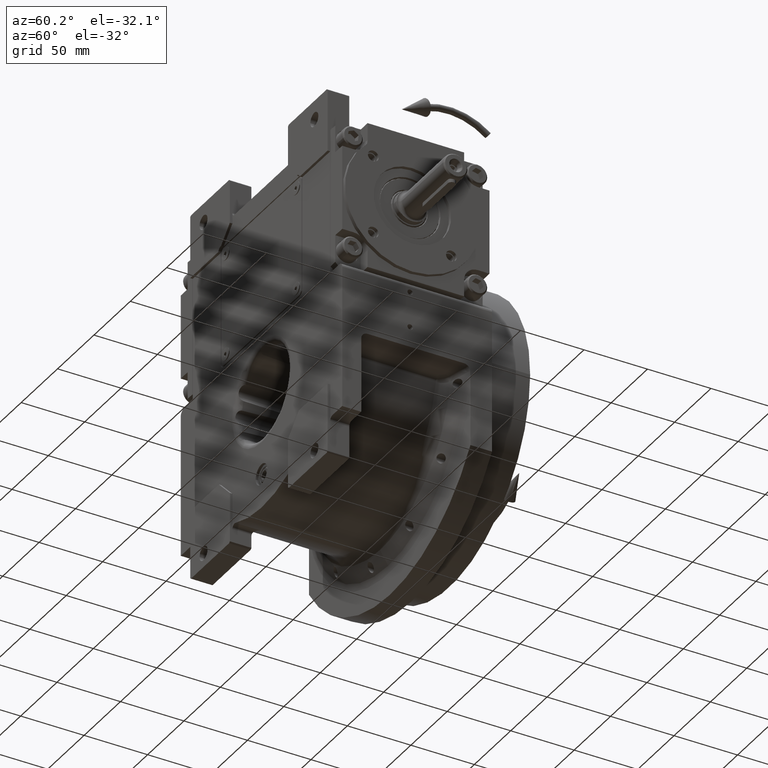
[diagram: clean part render]
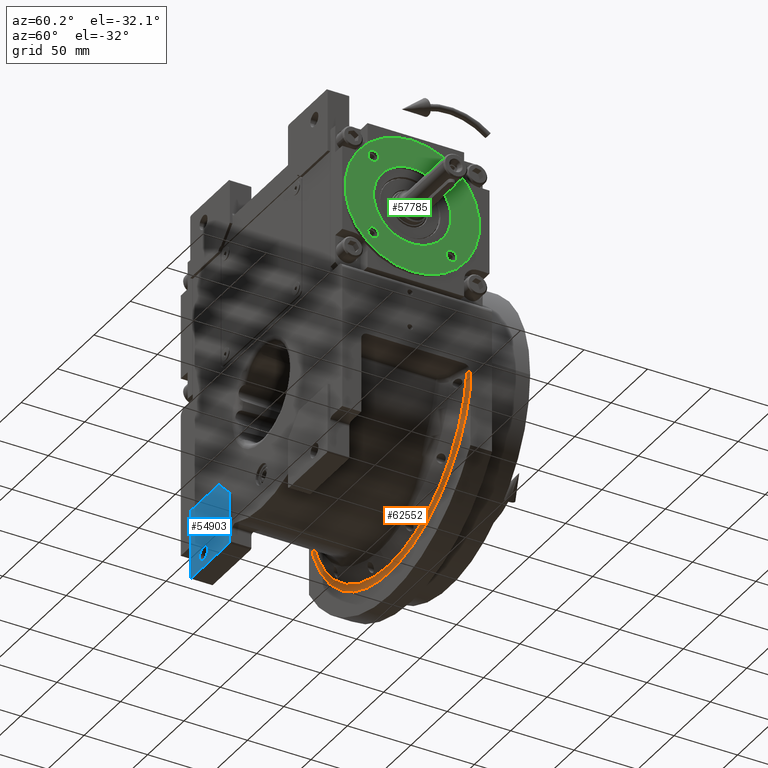
[diagram: same view with three faces highlighted in distinct colors, each labeled with its STEP entity id]
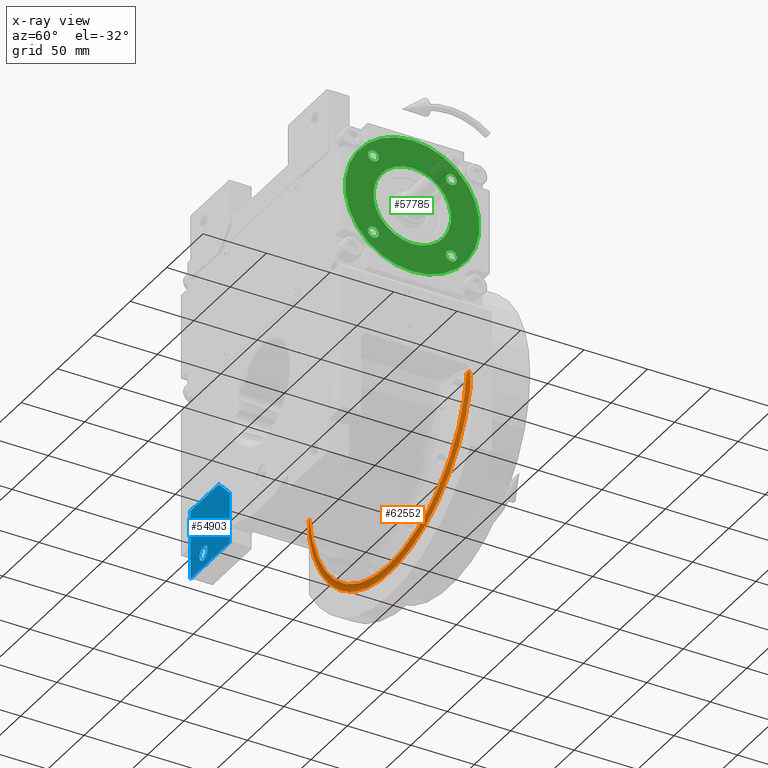
[diagram: x-ray of the same camera — body ghosted, the three highlighted faces saturated]
A machine part, auxiliary view with three faces highlighted in distinct colors.
The next image is the same camera in x-ray (body ghosted, the three faces saturated) — at least one of them is partly hidden behind the body in this view.
Their STEP definitions:

[orange] entity #62552 — the highlighted toroidal blend (fillet) surface has major radius 113.879 mm and minor (blend) radius 10 mm.
#1442 = ORIENTED_EDGE ( 'NONE', *, *, #37492, .F. ) ;
#2261 = DIRECTION ( 'NONE',  ( 0.000000000000000000, 1.000000000000000000, 0.000000000000000000 ) ) ;
#2542 = CARTESIAN_POINT ( 'NONE',  ( 108.2182055107325880, 46.16026080517839603, -11.98086067912928065 ) ) ;
#2767 = EDGE_CURVE ( 'NONE', #68856, #49885, #37595, .T. ) ;
#4056 = CARTESIAN_POINT ( 'NONE',  ( 108.2182055107325880, 46.16026080517839603, -11.98086067912928065 ) ) ;
#5050 = VERTEX_POINT ( 'NONE', #23786 ) ;
#5181 = CARTESIAN_POINT ( 'NONE',  ( 110.9999999999999716, 47.37947912676571605, -17.25058397870262894 ) ) ;
#5204 = EDGE_CURVE ( 'NONE', #59089, #41623, #39134, .T. ) ;
#6763 = CARTESIAN_POINT ( 'NONE',  ( -111.0000000000000142, 47.39775283363938030, -18.01025571059393826 ) ) ;
#9740 = CARTESIAN_POINT ( 'NONE',  ( 110.9999999999999574, 47.37721023959501565, -17.15660303781627150 ) ) ;
#9905 = CARTESIAN_POINT ( 'NONE',  ( -111.0000000000000000, 47.50000000000000000, -25.44626115736729588 ) ) ;
#10220 = CARTESIAN_POINT ( 'NONE',  ( -108.5720257659131534, 46.36153724422366906, -11.95314572303506395 ) ) ;
#10331 = CARTESIAN_POINT ( 'NONE',  ( 110.9999998869266022, 47.24161831933449918, -11.75654022255562126 ) ) ;
#10779 = B_SPLINE_CURVE_WITH_KNOTS ( 'NONE', 3,
 ( #43684, #44357, #33449, #6763, #27134, #32056, #38054, #16239, #53861, #64723, #16583, #59475, #11337 ),
 .UNSPECIFIED., .F., .F.,
 ( 4, 1, 1, 2, 2, 1, 1, 1, 4 ),
 ( 0.000000000000000000, 0.4999999999999906741, 0.5624999999999891198, 0.5703124999999893419, 0.5781249999999896749, 0.5937499999999901190, 0.6249999999999905631, 0.7499999999999935607, 1.000000000000000000 ),
 .UNSPECIFIED. ) ;
#11337 = CARTESIAN_POINT ( 'NONE',  ( -110.9999998426041969, 47.24161804384319652, -11.75654023702319861 ) ) ;
#12448 = CARTESIAN_POINT ( 'NONE',  ( -6.107335892911600708E-14, 46.16024936020976099, -108.8793717567185979 ) ) ;
#12451 = DIRECTION ( 'NONE',  ( -0.9987228073795436645, 0.000000000000000000, -0.05052478619373559215 ) ) ;
#12508 = ORIENTED_EDGE ( 'NONE', *, *, #25675, .T. ) ;
#12549 = CARTESIAN_POINT ( 'NONE',  ( 108.9783490142804538, 46.56487083118202719, -11.92075401756932429 ) ) ;
#13605 = EDGE_CURVE ( 'NONE', #59089, #5050, #44052, .T. ) ;
#15712 = CARTESIAN_POINT ( 'NONE',  ( 110.9999998869266022, 47.24161831933449918, -11.75654022255562126 ) ) ;
#16239 = CARTESIAN_POINT ( 'NONE',  ( -111.0000000000000568, 47.38398366112607363, -17.43201616111707608 ) ) ;
#16583 = CARTESIAN_POINT ( 'NONE',  ( -111.0000000000000284, 47.30739276393136095, -14.28307552350015541 ) ) ;
#20991 = AXIS2_PLACEMENT_3D ( 'NONE', #37780, #53596, #27231 ) ;
#21336 = CARTESIAN_POINT ( 'NONE',  ( 110.9999999999999289, 47.46019542777067812, -20.85051949887152745 ) ) ;
#22749 = CARTESIAN_POINT ( 'NONE',  ( 110.4235987460407671, 47.10989188117843440, -11.80426955000224964 ) ) ;
#23786 = CARTESIAN_POINT ( 'NONE',  ( 111.0000000000000000, 47.50000000000000000, -25.44626115736659955 ) ) ;
#24753 = TOROIDAL_SURFACE ( 'NONE', #43872, 113.8793756871230016, 10.00000000000000000 ) ;
#25434 = B_SPLINE_CURVE_WITH_KNOTS ( 'NONE', 3,
 ( #57663, #10220, #63275, #25698, #26037, #35884 ),
 .UNSPECIFIED., .F., .F.,
 ( 4, 2, 4 ),
 ( 0.000000000000000000, 0.5000000000000000000, 1.000000000000000000 ),
 .UNSPECIFIED. ) ;
#25675 = EDGE_CURVE ( 'NONE', #32113, #5050, #41168, .T. ) ;
#25698 = CARTESIAN_POINT ( 'NONE',  ( -109.9037689433001930, 46.93895356715016476, -11.84632748395139146 ) ) ;
#26037 = CARTESIAN_POINT ( 'NONE',  ( -110.4234585868003222, 47.10985980794839634, -11.80427979343789069 ) ) ;
#26183 = CARTESIAN_POINT ( 'NONE',  ( 58.33757220637139795, 46.16024934371661459, -108.8793713190323729 ) ) ;
#26460 = CARTESIAN_POINT ( 'NONE',  ( 108.5721546957471020, 46.36161021549431638, -11.95313475060374131 ) ) ;
#26593 = CARTESIAN_POINT ( 'NONE',  ( 110.9999999999999574, 47.38500262563848509, -17.48094355212767326 ) ) ;
#27134 = CARTESIAN_POINT ( 'NONE',  ( -111.0000000000000284, 47.38981798226070907, -17.67600262140464196 ) ) ;
#27231 = DIRECTION ( 'NONE',  ( -0.9747155648707268583, 0.000000000000000000, -0.2234492506112734644 ) ) ;
#28351 = CARTESIAN_POINT ( 'NONE',  ( 110.9999998869266022, 47.24161831933449918, -11.75654022255562126 ) ) ;
#28727 = ORIENTED_EDGE ( 'NONE', *, *, #13605, .F. ) ;
#31519 = CARTESIAN_POINT ( 'NONE',  ( 110.9999999999999858, 47.35262548411426309, -16.14045418600772308 ) ) ;
#31863 = CARTESIAN_POINT ( 'NONE',  ( 111.0000000000000000, 47.38034144301978046, -17.28637658354777784 ) ) ;
#32056 = CARTESIAN_POINT ( 'NONE',  ( -111.0000000000000142, 47.38804427955523835, -17.60168279826294579 ) ) ;
#32113 = VERTEX_POINT ( 'NONE', #9905 ) ;
#33449 = CARTESIAN_POINT ( 'NONE',  ( -110.9999999999999858, 47.45869610671962846, -20.70783326501533494 ) ) ;
#33556 = CARTESIAN_POINT ( 'NONE',  ( -110.9999998426041969, 47.24161804384319652, -11.75654023702319861 ) ) ;
#35884 = CARTESIAN_POINT ( 'NONE',  ( -110.9999998426041969, 47.24161804384319652, -11.75654023702319861 ) ) ;
#37492 = EDGE_CURVE ( 'NONE', #49885, #41623, #67743, .T. ) ;
#37497 = CARTESIAN_POINT ( 'NONE',  ( 111.0000000000000000, 47.50000000000000000, -25.44626115736659955 ) ) ;
#37595 =( BOUNDED_CURVE ( )  B_SPLINE_CURVE ( 3, ( #66202, #45137, #61267, #12448 ),
 .UNSPECIFIED., .F., .F. ) 
 B_SPLINE_CURVE_WITH_KNOTS ( ( 4, 4 ),
 ( 4.894359738531879778, 6.354897060524587360 ),
 .UNSPECIFIED. ) 
 CURVE ( )  GEOMETRIC_REPRESENTATION_ITEM ( )  RATIONAL_B_SPLINE_CURVE ( ( 1.000000000000000000, 0.8299968090623841555, 0.8299968090623841555, 1.000000000000000000 ) ) 
 REPRESENTATION_ITEM ( '' )  );
#37780 = CARTESIAN_POINT ( 'NONE',  ( -9.947598300641398816E-14, 47.50000000000000000, -5.684341886080798963E-14 ) ) ;
#38054 = CARTESIAN_POINT ( 'NONE',  ( -111.0000000000000142, 47.38697793714037942, -17.55712914402924696 ) ) ;
#39134 = B_SPLINE_CURVE_WITH_KNOTS ( 'NONE', 3,
 ( #28351, #22749, #49828, #12549, #26460, #51882 ),
 .UNSPECIFIED., .F., .F.,
 ( 4, 2, 4 ),
 ( 0.000000000000000000, 0.5000000000000000000, 1.000000000000000000 ),
 .UNSPECIFIED. ) ;
#40610 = ORIENTED_EDGE ( 'NONE', *, *, #2767, .F. ) ;
#41168 = CIRCLE ( 'NONE', #20991, 113.8793756871230158 ) ;
#41623 = VERTEX_POINT ( 'NONE', #2542 ) ;
#41721 = EDGE_CURVE ( 'NONE', #68856, #57443, #25434, .T. ) ;
#43684 = CARTESIAN_POINT ( 'NONE',  ( -111.0000000000000000, 47.50000000000000000, -25.44626115736729588 ) ) ;
#43872 = AXIS2_PLACEMENT_3D ( 'NONE', #50427, #2261, #12451 ) ;
#44052 = B_SPLINE_CURVE_WITH_KNOTS ( 'NONE', 3,
 ( #15712, #47379, #68780, #31519, #63846, #9740, #5181, #31863, #26593, #58918, #21336, #48078, #37497 ),
 .UNSPECIFIED., .F., .F.,
 ( 4, 1, 1, 1, 2, 2, 1, 1, 4 ),
 ( 0.000000000000000000, 0.2499999999999993339, 0.3749999999999991673, 0.3906249999999991673, 0.3984374999999988898, 0.4062499999999986122, 0.4374999999999987788, 0.4999999999999991118, 1.000000000000000000 ),
 .UNSPECIFIED. ) ;
#44357 = CARTESIAN_POINT ( 'NONE',  ( -110.9999999999999858, 47.49184152199143227, -23.26125549203704068 ) ) ;
#44453 = FACE_OUTER_BOUND ( 'NONE', #60206, .T. ) ;
#45137 = CARTESIAN_POINT ( 'NONE',  ( -101.7990064294248214, 46.16025384316066038, -69.96404336023731219 ) ) ;
#47379 = CARTESIAN_POINT ( 'NONE',  ( 110.9999999999999574, 47.26250817921272329, -12.53135113091263264 ) ) ;
#48078 = CARTESIAN_POINT ( 'NONE',  ( 110.9999999999999574, 47.49300976463167956, -23.37757664004382363 ) ) ;
#49828 = CARTESIAN_POINT ( 'NONE',  ( 109.9039732449431170, 46.93902478097685815, -11.84631214861205706 ) ) ;
#49885 = VERTEX_POINT ( 'NONE', #64367 ) ;
#50427 = CARTESIAN_POINT ( 'NONE',  ( -9.237055564881299892E-14, 37.50000000000000000, -8.171241461241149613E-14 ) ) ;
#51048 = CARTESIAN_POINT ( 'NONE',  ( -108.2181486248951927, 46.16020982646139714, -11.98056577044130044 ) ) ;
#51882 = CARTESIAN_POINT ( 'NONE',  ( 108.2182055107325880, 46.16026080517839603, -11.98086067912928065 ) ) ;
#51886 = ORIENTED_EDGE ( 'NONE', *, *, #5204, .T. ) ;
#51903 = ORIENTED_EDGE ( 'NONE', *, *, #41721, .T. ) ;
#52901 = CARTESIAN_POINT ( 'NONE',  ( 101.7988371762501458, 46.16025378558333614, -69.96418493751507128 ) ) ;
#53596 = DIRECTION ( 'NONE',  ( 0.000000000000000000, -1.000000000000000000, 0.000000000000000000 ) ) ;
#53861 = CARTESIAN_POINT ( 'NONE',  ( -111.0000000000000000, 47.37801887890174868, -17.18315811918595060 ) ) ;
#56981 = ORIENTED_EDGE ( 'NONE', *, *, #64392, .F. ) ;
#57443 = VERTEX_POINT ( 'NONE', #33556 ) ;
#57663 = CARTESIAN_POINT ( 'NONE',  ( -108.2181486248951927, 46.16020982646139714, -11.98056577044130044 ) ) ;
#58918 = CARTESIAN_POINT ( 'NONE',  ( 110.9999999999999147, 47.39592956473512686, -17.94582316151957713 ) ) ;
#59089 = VERTEX_POINT ( 'NONE', #10331 ) ;
#59475 = CARTESIAN_POINT ( 'NONE',  ( -111.0000000000000284, 47.26671036820440008, -12.69711666045169274 ) ) ;
#60206 = EDGE_LOOP ( 'NONE', ( #40610, #51903, #56981, #12508, #28727, #51886, #1442 ) ) ;
#61267 = CARTESIAN_POINT ( 'NONE',  ( -58.33770022237654018, 46.16024937670292871, -108.8793721944054340 ) ) ;
#62552 = ADVANCED_FACE ( 'NONE', ( #44453 ), #24753, .F. ) ;
#63275 = CARTESIAN_POINT ( 'NONE',  ( -108.9781506155099464, 46.56477920288156724, -11.92076974956339086 ) ) ;
#63846 = CARTESIAN_POINT ( 'NONE',  ( 110.9999999999999858, 47.37382107352491545, -17.01630155678829581 ) ) ;
#64367 = CARTESIAN_POINT ( 'NONE',  ( -6.107335892911600708E-14, 46.16024936020976099, -108.8793717567185979 ) ) ;
#64392 = EDGE_CURVE ( 'NONE', #32113, #57443, #10779, .T. ) ;
#64723 = CARTESIAN_POINT ( 'NONE',  ( -110.9999999999999716, 47.35640947859300098, -16.28572579493090444 ) ) ;
#66202 = CARTESIAN_POINT ( 'NONE',  ( -108.2181486248951927, 46.16020982646139714, -11.98056577044130044 ) ) ;
#67743 =( BOUNDED_CURVE ( )  B_SPLINE_CURVE ( 3, ( #68373, #26183, #52901, #4056 ),
 .UNSPECIFIED., .F., .F. ) 
 B_SPLINE_CURVE_WITH_KNOTS ( ( 4, 4 ),
 ( 0.07171175334500150267, 1.532246419677093741 ),
 .UNSPECIFIED. ) 
 CURVE ( )  GEOMETRIC_REPRESENTATION_ITEM ( )  RATIONAL_B_SPLINE_CURVE ( ( 1.000000000000000000, 0.8299973995656204639, 0.8299973995656204639, 1.000000000000000000 ) ) 
 REPRESENTATION_ITEM ( '' )  );
#68373 = CARTESIAN_POINT ( 'NONE',  ( -6.107335892911600708E-14, 46.16024936020976099, -108.8793717567185979 ) ) ;
#68780 = CARTESIAN_POINT ( 'NONE',  ( 110.9999999999999432, 47.30109702303251140, -14.03657177442504000 ) ) ;
#68856 = VERTEX_POINT ( 'NONE', #51048 ) ;

[blue] entity #54903 — the highlighted planar face has unit normal (0, -1, 0).
#49 = EDGE_LOOP ( 'NONE', ( #60587, #40422, #36237, #50227, #15424, #33692, #30571 ) ) ;
#1029 = EDGE_LOOP ( 'NONE', ( #23402, #23995 ) ) ;
#2044 = CARTESIAN_POINT ( 'NONE',  ( -55.00000000000000000, -55.50000000000000000, -45.00000000000000000 ) ) ;
#2109 = CARTESIAN_POINT ( 'NONE',  ( -70.70000000000000284, -55.50000000000000000, -89.00000000000000000 ) ) ;
#6616 = DIRECTION ( 'NONE',  ( -0.7071067811865474617, 0.000000000000000000, 0.7071067811865474617 ) ) ;
#8223 = VERTEX_POINT ( 'NONE', #2109 ) ;
#10587 = CARTESIAN_POINT ( 'NONE',  ( -76.20000000000000284, -55.50000000000000000, -89.00000000000000000 ) ) ;
#10856 = EDGE_CURVE ( 'NONE', #69112, #20429, #43637, .T. ) ;
#10902 = DIRECTION ( 'NONE',  ( 0.000000000000000000, 1.000000000000000000, 0.000000000000000000 ) ) ;
#12300 = DIRECTION ( 'NONE',  ( 0.7071067811865474617, 0.000000000000000000, 0.7071067811865474617 ) ) ;
#13141 = CARTESIAN_POINT ( 'NONE',  ( -94.50000000000000000, -55.50000000000000000, -99.00000000000000000 ) ) ;
#14877 = EDGE_CURVE ( 'NONE', #8223, #50410, #37798, .T. ) ;
#15424 = ORIENTED_EDGE ( 'NONE', *, *, #10856, .T. ) ;
#16735 = CARTESIAN_POINT ( 'NONE',  ( -94.50000000000000000, -55.50000000000000000, -45.00000000000000000 ) ) ;
#17239 = VECTOR ( 'NONE', #31962, 1000.000000000000114 ) ;
#17539 = LINE ( 'NONE', #33732, #48547 ) ;
#17785 = DIRECTION ( 'NONE',  ( 0.000000000000000000, 0.000000000000000000, 1.000000000000000000 ) ) ;
#18676 = VECTOR ( 'NONE', #17785, 1000.000000000000000 ) ;
#19649 = PLANE ( 'NONE',  #34296 ) ;
#20429 = VERTEX_POINT ( 'NONE', #20702 ) ;
#20702 = CARTESIAN_POINT ( 'NONE',  ( -94.50000000000000000, -55.50000000000000000, -45.00000000000000000 ) ) ;
#20731 = CARTESIAN_POINT ( 'NONE',  ( -76.20000000000000284, -55.50000000000000000, -89.00000000000000000 ) ) ;
#23402 = ORIENTED_EDGE ( 'NONE', *, *, #14877, .T. ) ;
#23846 = EDGE_CURVE ( 'NONE', #28719, #54862, #65928, .T. ) ;
#23995 = ORIENTED_EDGE ( 'NONE', *, *, #68997, .T. ) ;
#24931 = FACE_BOUND ( 'NONE', #1029, .T. ) ;
#26747 = DIRECTION ( 'NONE',  ( -1.000000000000000000, 0.000000000000000000, 0.000000000000000000 ) ) ;
#28369 = VECTOR ( 'NONE', #6616, 1000.000000000000114 ) ;
#28719 = VERTEX_POINT ( 'NONE', #67026 ) ;
#28721 = VECTOR ( 'NONE', #60805, 1000.000000000000000 ) ;
#30571 = ORIENTED_EDGE ( 'NONE', *, *, #33870, .T. ) ;
#30908 = DIRECTION ( 'NONE',  ( 0.000000000000000000, -1.000000000000000000, 0.000000000000000000 ) ) ;
#31395 = EDGE_CURVE ( 'NONE', #20429, #40047, #37824, .T. ) ;
#31962 = DIRECTION ( 'NONE',  ( 0.7071067811865474617, 0.000000000000000000, -0.7071067811865474617 ) ) ;
#33692 = ORIENTED_EDGE ( 'NONE', *, *, #31395, .T. ) ;
#33732 = CARTESIAN_POINT ( 'NONE',  ( -41.00000000000000000, -55.50000000000000000, -100.0000000000000000 ) ) ;
#33870 = EDGE_CURVE ( 'NONE', #40047, #51150, #65323, .T. ) ;
#34296 = AXIS2_PLACEMENT_3D ( 'NONE', #41824, #30908, #52368 ) ;
#35490 = CARTESIAN_POINT ( 'NONE',  ( -93.50000000000000000, -55.50000000000000000, -100.0000000000000000 ) ) ;
#36237 = ORIENTED_EDGE ( 'NONE', *, *, #23846, .T. ) ;
#36588 = DIRECTION ( 'NONE',  ( 0.000000000000000000, 1.000000000000000000, 0.000000000000000000 ) ) ;
#37259 = LINE ( 'NONE', #59401, #44654 ) ;
#37798 = CIRCLE ( 'NONE', #64717, 5.500000000000005329 ) ;
#37824 = LINE ( 'NONE', #16735, #53079 ) ;
#38525 = EDGE_CURVE ( 'NONE', #51150, #62783, #37259, .T. ) ;
#40047 = VERTEX_POINT ( 'NONE', #13141 ) ;
#40422 = ORIENTED_EDGE ( 'NONE', *, *, #66234, .T. ) ;
#41824 = CARTESIAN_POINT ( 'NONE',  ( 0.000000000000000000, -55.50000000000000000, 0.000000000000000000 ) ) ;
#43166 = CARTESIAN_POINT ( 'NONE',  ( -40.00000000000000000, -55.50000000000000000, -60.00000000000000000 ) ) ;
#43601 = DIRECTION ( 'NONE',  ( 1.000000000000000000, 0.000000000000000000, 0.000000000000000000 ) ) ;
#43637 = LINE ( 'NONE', #65713, #28721 ) ;
#44654 = VECTOR ( 'NONE', #43601, 1000.000000000000000 ) ;
#48547 = VECTOR ( 'NONE', #12300, 1000.000000000000114 ) ;
#48872 = CARTESIAN_POINT ( 'NONE',  ( -94.50000000000000000, -55.50000000000000000, -99.00000000000000000 ) ) ;
#50227 = ORIENTED_EDGE ( 'NONE', *, *, #66691, .T. ) ;
#50410 = VERTEX_POINT ( 'NONE', #68104 ) ;
#51150 = VERTEX_POINT ( 'NONE', #35490 ) ;
#52368 = DIRECTION ( 'NONE',  ( -1.000000000000000000, 0.000000000000000000, 0.000000000000000000 ) ) ;
#53079 = VECTOR ( 'NONE', #59260, 1000.000000000000000 ) ;
#54731 = LINE ( 'NONE', #43166, #28369 ) ;
#54862 = VERTEX_POINT ( 'NONE', #57272 ) ;
#54903 = ADVANCED_FACE ( 'NONE', ( #24931, #67816 ), #19649, .T. ) ;
#57272 = CARTESIAN_POINT ( 'NONE',  ( -40.00000000000000000, -55.50000000000000000, -60.00000000000000000 ) ) ;
#58348 = DIRECTION ( 'NONE',  ( 1.000000000000000000, 0.000000000000000000, 0.000000000000000000 ) ) ;
#59260 = DIRECTION ( 'NONE',  ( 0.000000000000000000, 0.000000000000000000, -1.000000000000000000 ) ) ;
#59401 = CARTESIAN_POINT ( 'NONE',  ( -93.50000000000000000, -55.50000000000000000, -100.0000000000000000 ) ) ;
#60587 = ORIENTED_EDGE ( 'NONE', *, *, #38525, .T. ) ;
#60805 = DIRECTION ( 'NONE',  ( -1.000000000000000000, 0.000000000000000000, 0.000000000000000000 ) ) ;
#62783 = VERTEX_POINT ( 'NONE', #68277 ) ;
#64717 = AXIS2_PLACEMENT_3D ( 'NONE', #20731, #10902, #58348 ) ;
#65323 = LINE ( 'NONE', #48872, #17239 ) ;
#65713 = CARTESIAN_POINT ( 'NONE',  ( -55.00000000000000000, -55.50000000000000000, -45.00000000000000000 ) ) ;
#65928 = LINE ( 'NONE', #66952, #18676 ) ;
#66234 = EDGE_CURVE ( 'NONE', #62783, #28719, #17539, .T. ) ;
#66691 = EDGE_CURVE ( 'NONE', #54862, #69112, #54731, .T. ) ;
#66952 = CARTESIAN_POINT ( 'NONE',  ( -40.00000000000000000, -55.50000000000000000, -99.00000000000000000 ) ) ;
#67026 = CARTESIAN_POINT ( 'NONE',  ( -40.00000000000000000, -55.50000000000000000, -99.00000000000000000 ) ) ;
#67517 = CIRCLE ( 'NONE', #68680, 5.500000000000005329 ) ;
#67816 = FACE_OUTER_BOUND ( 'NONE', #49, .T. ) ;
#68104 = CARTESIAN_POINT ( 'NONE',  ( -81.69999999999998863, -55.50000000000000000, -89.00000000000000000 ) ) ;
#68277 = CARTESIAN_POINT ( 'NONE',  ( -41.00000000000000000, -55.50000000000000000, -100.0000000000000000 ) ) ;
#68680 = AXIS2_PLACEMENT_3D ( 'NONE', #10587, #36588, #26747 ) ;
#68997 = EDGE_CURVE ( 'NONE', #50410, #8223, #67517, .T. ) ;
#69112 = VERTEX_POINT ( 'NONE', #2044 ) ;

[green] entity #57785 — the highlighted planar face has unit normal (1, 0, 0).
#50 = EDGE_LOOP ( 'NONE', ( #25811, #30484 ) ) ;
#250 = CARTESIAN_POINT ( 'NONE',  ( 3.000000000000002665, -30.75914498161480282, -30.75914498161484545 ) ) ;
#423 = CARTESIAN_POINT ( 'NONE',  ( 3.000000000000002665, 35.00914498161479571, 30.75914498161484545 ) ) ;
#592 = CARTESIAN_POINT ( 'NONE',  ( 3.000000000000002665, 0.000000000000000000, 0.000000000000000000 ) ) ;
#741 = CARTESIAN_POINT ( 'NONE',  ( 3.000000000000002665, 30.75914498161480282, 30.75914498161484545 ) ) ;
#1532 = DIRECTION ( 'NONE',  ( 0.000000000000000000, 0.000000000000000000, 1.000000000000000000 ) ) ;
#1636 = ORIENTED_EDGE ( 'NONE', *, *, #28214, .T. ) ;
#1746 = FACE_BOUND ( 'NONE', #30892, .T. ) ;
#2007 = CARTESIAN_POINT ( 'NONE',  ( 3.000000000000002665, 30.75914498161484900, -30.75914498161480637 ) ) ;
#3251 = EDGE_CURVE ( 'NONE', #39488, #13659, #67075, .T. ) ;
#3491 = CARTESIAN_POINT ( 'NONE',  ( 3.000000000000002665, -35.00914498161484545, 30.75914498161479216 ) ) ;
#5121 = DIRECTION ( 'NONE',  ( 0.000000000000000000, 5.824120784918849355E-17, -1.000000000000000000 ) ) ;
#5745 = FACE_BOUND ( 'NONE', #47276, .T. ) ;
#7068 = DIRECTION ( 'NONE',  ( -1.000000000000000000, 0.000000000000000000, 0.000000000000000000 ) ) ;
#7683 = ORIENTED_EDGE ( 'NONE', *, *, #11196, .T. ) ;
#8499 = CARTESIAN_POINT ( 'NONE',  ( 3.000000000000002665, 0.000000000000000000, -53.00000000000000000 ) ) ;
#8724 = CARTESIAN_POINT ( 'NONE',  ( 3.000000000000002665, 2.163542678493654678E-15, 53.00000000000000711 ) ) ;
#10351 = ORIENTED_EDGE ( 'NONE', *, *, #15478, .T. ) ;
#10732 = AXIS2_PLACEMENT_3D ( 'NONE', #592, #34212, #31854 ) ;
#10955 = VERTEX_POINT ( 'NONE', #3491 ) ;
#11196 = EDGE_CURVE ( 'NONE', #13659, #39488, #36594, .T. ) ;
#11258 = AXIS2_PLACEMENT_3D ( 'NONE', #15785, #69198, #64261 ) ;
#11564 = ORIENTED_EDGE ( 'NONE', *, *, #45695, .T. ) ;
#11627 = DIRECTION ( 'NONE',  ( 0.000000000000000000, 1.000000000000000000, 0.000000000000000000 ) ) ;
#11746 = ORIENTED_EDGE ( 'NONE', *, *, #45938, .T. ) ;
#12070 = CARTESIAN_POINT ( 'NONE',  ( 3.000000000000002665, 0.000000000000000000, 0.000000000000000000 ) ) ;
#12299 = FACE_BOUND ( 'NONE', #50, .T. ) ;
#12597 = CARTESIAN_POINT ( 'NONE',  ( 3.000000000000002665, -2.490115158266284896E-15, -30.50000000000000000 ) ) ;
#13659 = VERTEX_POINT ( 'NONE', #48431 ) ;
#15065 = CARTESIAN_POINT ( 'NONE',  ( 3.000000000000002665, 30.75914498161484900, -30.75914498161480637 ) ) ;
#15478 = EDGE_CURVE ( 'NONE', #35386, #61563, #47746, .T. ) ;
#15521 = AXIS2_PLACEMENT_3D ( 'NONE', #31479, #58535, #64488 ) ;
#15785 = CARTESIAN_POINT ( 'NONE',  ( 3.000000000000002665, -30.75914498161484900, 30.75914498161479216 ) ) ;
#16500 = DIRECTION ( 'NONE',  ( 0.000000000000000000, -1.000000000000000000, 0.000000000000000000 ) ) ;
#16713 = AXIS2_PLACEMENT_3D ( 'NONE', #741, #38340, #11627 ) ;
#18564 = FACE_BOUND ( 'NONE', #19417, .T. ) ;
#18937 = DIRECTION ( 'NONE',  ( 0.000000000000000000, 5.824120784918859216E-17, 1.000000000000000000 ) ) ;
#19417 = EDGE_LOOP ( 'NONE', ( #7683, #52452 ) ) ;
#22362 = EDGE_CURVE ( 'NONE', #26492, #51680, #54472, .T. ) ;
#22388 = DIRECTION ( 'NONE',  ( -1.000000000000000000, 0.000000000000000000, 0.000000000000000000 ) ) ;
#22394 = AXIS2_PLACEMENT_3D ( 'NONE', #34775, #28796, #18937 ) ;
#22750 = VERTEX_POINT ( 'NONE', #423 ) ;
#22899 = EDGE_CURVE ( 'NONE', #45105, #22750, #56745, .T. ) ;
#23111 = CARTESIAN_POINT ( 'NONE',  ( 3.000000000000002665, 26.50914498161480282, 30.75914498161484545 ) ) ;
#24385 = VERTEX_POINT ( 'NONE', #64279 ) ;
#24400 = CIRCLE ( 'NONE', #30009, 53.00000000000000000 ) ;
#24568 = AXIS2_PLACEMENT_3D ( 'NONE', #250, #22388, #48075 ) ;
#25811 = ORIENTED_EDGE ( 'NONE', *, *, #60659, .T. ) ;
#26289 = VERTEX_POINT ( 'NONE', #44372 ) ;
#26321 = EDGE_CURVE ( 'NONE', #51680, #26492, #24400, .T. ) ;
#26472 = AXIS2_PLACEMENT_3D ( 'NONE', #29521, #56909, #62185 ) ;
#26492 = VERTEX_POINT ( 'NONE', #8499 ) ;
#26537 = AXIS2_PLACEMENT_3D ( 'NONE', #27152, #50939, #49904 ) ;
#27152 = CARTESIAN_POINT ( 'NONE',  ( 3.000000000000002665, 0.000000000000000000, 0.000000000000000000 ) ) ;
#28214 = EDGE_CURVE ( 'NONE', #10955, #49870, #68417, .T. ) ;
#28796 = DIRECTION ( 'NONE',  ( -1.000000000000000000, 0.000000000000000000, 0.000000000000000000 ) ) ;
#29116 = CARTESIAN_POINT ( 'NONE',  ( 3.000000000000002665, 1.245057579133142053E-15, 30.50000000000001421 ) ) ;
#29468 = PLANE ( 'NONE',  #26537 ) ;
#29521 = CARTESIAN_POINT ( 'NONE',  ( 3.000000000000002665, 30.75914498161480282, 30.75914498161484545 ) ) ;
#30009 = AXIS2_PLACEMENT_3D ( 'NONE', #12070, #55280, #1532 ) ;
#30484 = ORIENTED_EDGE ( 'NONE', *, *, #40922, .T. ) ;
#30892 = EDGE_LOOP ( 'NONE', ( #55695, #1636 ) ) ;
#31479 = CARTESIAN_POINT ( 'NONE',  ( 3.000000000000002665, -30.75914498161480282, -30.75914498161484545 ) ) ;
#31854 = DIRECTION ( 'NONE',  ( 0.000000000000000000, 0.000000000000000000, -1.000000000000000000 ) ) ;
#32161 = DIRECTION ( 'NONE',  ( -1.000000000000000000, 0.000000000000000000, 0.000000000000000000 ) ) ;
#33109 = CARTESIAN_POINT ( 'NONE',  ( 3.000000000000002665, -26.50914498161484900, 30.75914498161479216 ) ) ;
#33248 = AXIS2_PLACEMENT_3D ( 'NONE', #15065, #53731, #48145 ) ;
#33647 = CARTESIAN_POINT ( 'NONE',  ( 3.000000000000002665, 26.50914498161484900, -30.75914498161480637 ) ) ;
#34212 = DIRECTION ( 'NONE',  ( 1.000000000000000000, 0.000000000000000000, 0.000000000000000000 ) ) ;
#34775 = CARTESIAN_POINT ( 'NONE',  ( 3.000000000000002665, -1.776356839400249676E-15, 0.000000000000000000 ) ) ;
#35386 = VERTEX_POINT ( 'NONE', #12597 ) ;
#36594 = CIRCLE ( 'NONE', #33248, 4.250000000000000000 ) ;
#36798 = AXIS2_PLACEMENT_3D ( 'NONE', #2007, #58685, #16500 ) ;
#38029 = CIRCLE ( 'NONE', #15521, 4.250000000000000000 ) ;
#38340 = DIRECTION ( 'NONE',  ( -1.000000000000000000, 0.000000000000000000, 0.000000000000000000 ) ) ;
#39488 = VERTEX_POINT ( 'NONE', #33647 ) ;
#40033 = FACE_BOUND ( 'NONE', #63543, .T. ) ;
#40922 = EDGE_CURVE ( 'NONE', #24385, #26289, #38029, .T. ) ;
#41541 = CIRCLE ( 'NONE', #11258, 4.250000000000000000 ) ;
#44333 = CARTESIAN_POINT ( 'NONE',  ( 3.000000000000002665, -30.75914498161484900, 30.75914498161479216 ) ) ;
#44372 = CARTESIAN_POINT ( 'NONE',  ( 3.000000000000002665, -26.50914498161480282, -30.75914498161484545 ) ) ;
#45105 = VERTEX_POINT ( 'NONE', #23111 ) ;
#45245 = ORIENTED_EDGE ( 'NONE', *, *, #22362, .T. ) ;
#45695 = EDGE_CURVE ( 'NONE', #22750, #45105, #47053, .T. ) ;
#45938 = EDGE_CURVE ( 'NONE', #61563, #35386, #57127, .T. ) ;
#47053 = CIRCLE ( 'NONE', #16713, 4.250000000000000000 ) ;
#47111 = EDGE_CURVE ( 'NONE', #49870, #10955, #41541, .T. ) ;
#47276 = EDGE_LOOP ( 'NONE', ( #11564, #48259 ) ) ;
#47746 = CIRCLE ( 'NONE', #53333, 30.50000000000000000 ) ;
#48075 = DIRECTION ( 'NONE',  ( 0.000000000000000000, 1.000000000000000000, 1.632680918566406596E-15 ) ) ;
#48145 = DIRECTION ( 'NONE',  ( 0.000000000000000000, 1.000000000000000000, -1.632680918566406596E-15 ) ) ;
#48259 = ORIENTED_EDGE ( 'NONE', *, *, #22899, .T. ) ;
#48431 = CARTESIAN_POINT ( 'NONE',  ( 3.000000000000002665, 35.00914498161484545, -30.75914498161480637 ) ) ;
#49870 = VERTEX_POINT ( 'NONE', #33109 ) ;
#49904 = DIRECTION ( 'NONE',  ( 0.000000000000000000, 0.000000000000000000, -1.000000000000000000 ) ) ;
#50406 = CIRCLE ( 'NONE', #24568, 4.250000000000000000 ) ;
#50647 = DIRECTION ( 'NONE',  ( 0.000000000000000000, -1.000000000000000000, 0.000000000000000000 ) ) ;
#50939 = DIRECTION ( 'NONE',  ( 1.000000000000000000, 0.000000000000000000, 0.000000000000000000 ) ) ;
#51680 = VERTEX_POINT ( 'NONE', #8724 ) ;
#52452 = ORIENTED_EDGE ( 'NONE', *, *, #3251, .T. ) ;
#53333 = AXIS2_PLACEMENT_3D ( 'NONE', #59219, #32161, #5121 ) ;
#53731 = DIRECTION ( 'NONE',  ( -1.000000000000000000, 0.000000000000000000, 0.000000000000000000 ) ) ;
#54472 = CIRCLE ( 'NONE', #10732, 53.00000000000000000 ) ;
#54930 = AXIS2_PLACEMENT_3D ( 'NONE', #44333, #7068, #50647 ) ;
#55280 = DIRECTION ( 'NONE',  ( 1.000000000000000000, 0.000000000000000000, 0.000000000000000000 ) ) ;
#55695 = ORIENTED_EDGE ( 'NONE', *, *, #47111, .T. ) ;
#56745 = CIRCLE ( 'NONE', #26472, 4.250000000000000000 ) ;
#56909 = DIRECTION ( 'NONE',  ( -1.000000000000000000, 0.000000000000000000, 0.000000000000000000 ) ) ;
#57127 = CIRCLE ( 'NONE', #22394, 30.50000000000000000 ) ;
#57699 = EDGE_LOOP ( 'NONE', ( #66491, #45245 ) ) ;
#57785 = ADVANCED_FACE ( 'NONE', ( #5745, #1746, #12299, #18564, #59490, #40033 ), #29468, .T. ) ;
#58535 = DIRECTION ( 'NONE',  ( -1.000000000000000000, 0.000000000000000000, 0.000000000000000000 ) ) ;
#58685 = DIRECTION ( 'NONE',  ( -1.000000000000000000, 0.000000000000000000, 0.000000000000000000 ) ) ;
#59219 = CARTESIAN_POINT ( 'NONE',  ( 3.000000000000002665, -1.776356839400249676E-15, 0.000000000000000000 ) ) ;
#59490 = FACE_OUTER_BOUND ( 'NONE', #57699, .T. ) ;
#60659 = EDGE_CURVE ( 'NONE', #26289, #24385, #50406, .T. ) ;
#61563 = VERTEX_POINT ( 'NONE', #29116 ) ;
#62185 = DIRECTION ( 'NONE',  ( 0.000000000000000000, -1.000000000000000000, 0.000000000000000000 ) ) ;
#63543 = EDGE_LOOP ( 'NONE', ( #11746, #10351 ) ) ;
#64261 = DIRECTION ( 'NONE',  ( 0.000000000000000000, 1.000000000000000000, 0.000000000000000000 ) ) ;
#64279 = CARTESIAN_POINT ( 'NONE',  ( 3.000000000000002665, -35.00914498161479571, -30.75914498161484545 ) ) ;
#64488 = DIRECTION ( 'NONE',  ( 0.000000000000000000, -1.000000000000000000, 0.000000000000000000 ) ) ;
#66491 = ORIENTED_EDGE ( 'NONE', *, *, #26321, .T. ) ;
#67075 = CIRCLE ( 'NONE', #36798, 4.250000000000000000 ) ;
#68417 = CIRCLE ( 'NONE', #54930, 4.250000000000000000 ) ;
#69198 = DIRECTION ( 'NONE',  ( -1.000000000000000000, 0.000000000000000000, 0.000000000000000000 ) ) ;